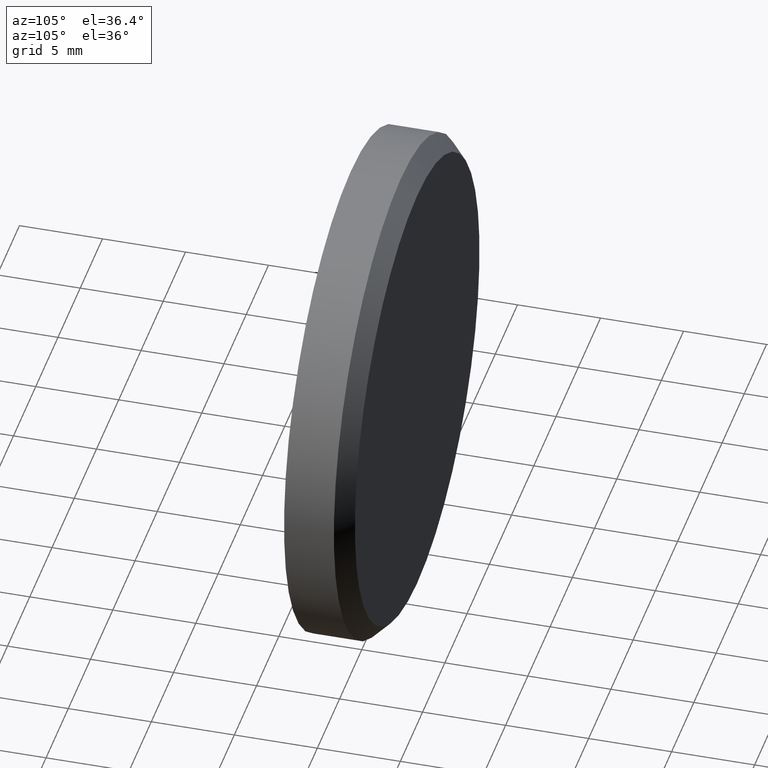
[diagram: clean part render]
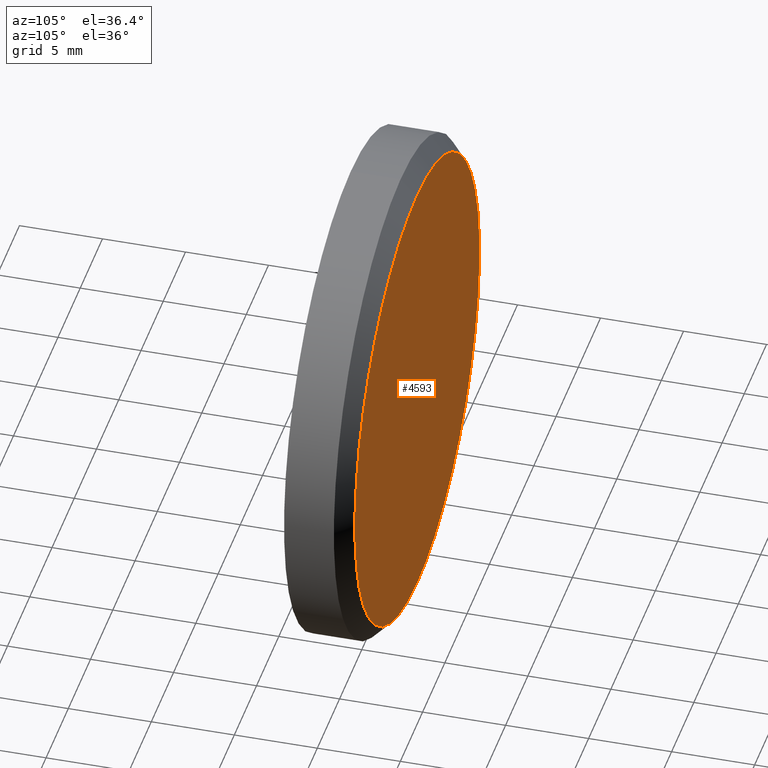
[diagram: same view with one face highlighted and labeled with its STEP entity id]
A machine part, auxiliary view. The second image highlights one B-rep face of the part: STEP entity #4593.
In plain terms, the highlighted planar face has unit normal (0, 1, 0).
Its self-contained STEP definition (entity closure, byte-faithful):
#207 = CARTESIAN_POINT ( 'NONE',  ( 0.000000000000000000, 2.000000000000000000, 0.000000000000000000 ) ) ;
#462 = DIRECTION ( 'NONE',  ( 0.000000000000000000, 1.000000000000000000, 0.000000000000000000 ) ) ;
#531 = AXIS2_PLACEMENT_3D ( 'NONE', #1592, #14638, #14534 ) ;
#858 = EDGE_CURVE ( 'NONE', #9654, #12066, #12225, .T. ) ;
#1229 = EDGE_CURVE ( 'NONE', #12066, #9654, #14805, .T. ) ;
#1592 = CARTESIAN_POINT ( 'NONE',  ( 0.000000000000000000, 2.000000000000000000, 0.000000000000000000 ) ) ;
#3554 = ORIENTED_EDGE ( 'NONE', *, *, #1229, .T. ) ;
#3719 = PLANE ( 'NONE',  #4913 ) ;
#4593 = ADVANCED_FACE ( 'NONE', ( #7104 ), #3719, .T. ) ;
#4913 = AXIS2_PLACEMENT_3D ( 'NONE', #207, #11873, #14245 ) ;
#6135 = CARTESIAN_POINT ( 'NONE',  ( 0.000000000000000000, 2.000000000000000000, -13.99999999999998934 ) ) ;
#7104 = FACE_OUTER_BOUND ( 'NONE', #8646, .T. ) ;
#7248 = CARTESIAN_POINT ( 'NONE',  ( 1.775737858763661226E-15, 2.000000000000000000, 13.99999999999998934 ) ) ;
#8646 = EDGE_LOOP ( 'NONE', ( #3554, #9947 ) ) ;
#8823 = DIRECTION ( 'NONE',  ( 0.000000000000000000, 0.000000000000000000, 1.000000000000000000 ) ) ;
#9654 = VERTEX_POINT ( 'NONE', #7248 ) ;
#9931 = CARTESIAN_POINT ( 'NONE',  ( 0.000000000000000000, 2.000000000000000000, 0.000000000000000000 ) ) ;
#9947 = ORIENTED_EDGE ( 'NONE', *, *, #858, .T. ) ;
#11873 = DIRECTION ( 'NONE',  ( 0.000000000000000000, 1.000000000000000000, 0.000000000000000000 ) ) ;
#12066 = VERTEX_POINT ( 'NONE', #6135 ) ;
#12225 = CIRCLE ( 'NONE', #13310, 13.99999999999998934 ) ;
#13310 = AXIS2_PLACEMENT_3D ( 'NONE', #9931, #462, #8823 ) ;
#14245 = DIRECTION ( 'NONE',  ( 0.000000000000000000, -0.000000000000000000, 1.000000000000000000 ) ) ;
#14534 = DIRECTION ( 'NONE',  ( 0.000000000000000000, 0.000000000000000000, 1.000000000000000000 ) ) ;
#14638 = DIRECTION ( 'NONE',  ( 0.000000000000000000, 1.000000000000000000, 0.000000000000000000 ) ) ;
#14805 = CIRCLE ( 'NONE', #531, 13.99999999999998934 ) ;